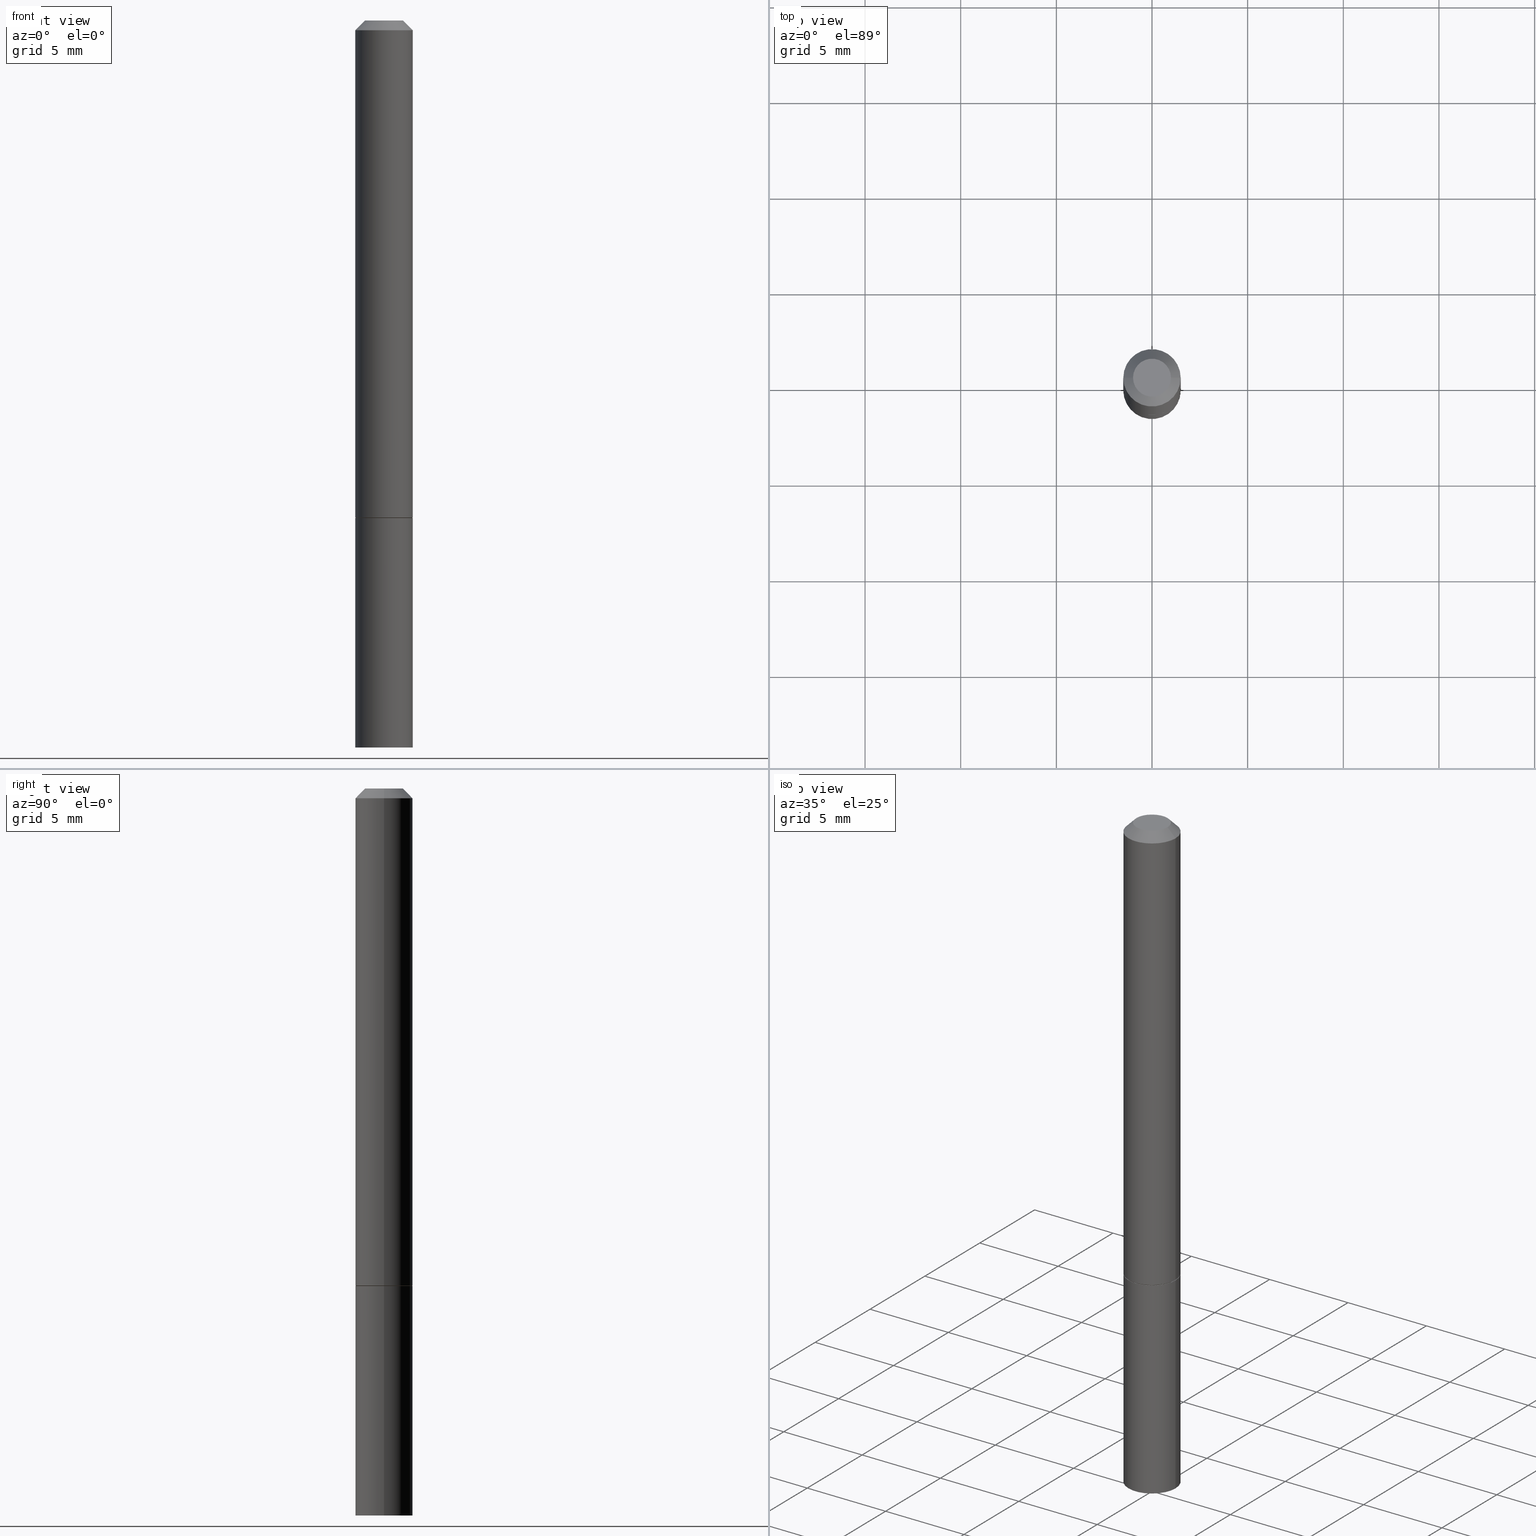
[diagram: canonical four-view strip — front | top / right | iso, engineering-drawing reading convention]
A machine part, canonical four-view strip (front | top / right | iso — engineering-drawing reading convention). The complete STEP part file that produces these views, byte-faithful:
ISO-10303-21;
HEADER;
FILE_DESCRIPTION (( 'STEP AP203' ),
    '1' );
FILE_NAME ('48760.STEP',
    '2024-02-28T14:09:40',
    ( '' ),
    ( '' ),
    'SwSTEP 2.0',
    'SolidWorks 2023',
    '' );
FILE_SCHEMA (( 'CONFIG_CONTROL_DESIGN' ));
ENDSEC;

DATA;
#1 = CARTESIAN_POINT ( 'NONE',  ( 2.503426416891723784E-29, -3.574229446573727613E-15, -1.023699999999999832 ) ) ;
#2 = CC_DESIGN_DATE_AND_TIME_ASSIGNMENT ( #135, #22, ( #174 ) ) ;
#3 = DIRECTION ( 'NONE',  ( 1.000000000000000000, -6.982962677686262766E-15, 0.000000000000000000 ) ) ;
#4 = DIRECTION ( 'NONE',  ( 2.438088387897960049E-29, -3.491481338843145188E-15, -1.000000000000000000 ) ) ;
#5 = AXIS2_PLACEMENT_3D ( 'NONE', #339, #89, #310 ) ;
#6 = LINE ( 'NONE', #258, #322 ) ;
#7 = CALENDAR_DATE ( 2024, 28, 2 ) ;
#8 = CARTESIAN_POINT ( 'NONE',  ( 3.658665880933582389E-29, -5.223605231043229660E-15, -1.496099999999999985 ) ) ;
#9 = ADVANCED_FACE ( 'NONE', ( #118 ), #196, .T. ) ;
#10 = DIRECTION ( 'NONE',  ( 0.7071067811865469066, -7.319954787623252890E-15, -0.7071067811865479058 ) ) ;
#11 = CIRCLE ( 'NONE', #194, 0.05904999999999994975 ) ;
#12 = LINE ( 'NONE', #229, #41 ) ;
#13 = CC_DESIGN_PERSON_AND_ORGANIZATION_ASSIGNMENT ( #156, #355, ( #215 ) ) ;
#14 = DIRECTION ( 'NONE',  ( 1.000000000000000000, -6.982962677686265922E-15, 4.873707401586885104E-29 ) ) ;
#15 = APPLICATION_PROTOCOL_DEFINITION ( 'international standard', 'config_control_design', 1994, #134 ) ;
#16 = AXIS2_PLACEMENT_3D ( 'NONE', #308, #221, #315 ) ;
#17 = APPROVAL_DATE_TIME ( #326, #95 ) ;
#18 = ORIENTED_EDGE ( 'NONE', *, *, #294, .F. ) ;
#19 = DIRECTION ( 'NONE',  ( -0.7071067811864992780, 7.493145998870180611E-15, 0.7071067811865957564 ) ) ;
#20 = VERTEX_POINT ( 'NONE', #84 ) ;
#21 = APPROVAL ( #335, 'UNSPECIFIED' ) ;
#22 = DATE_TIME_ROLE ( 'creation_date' ) ;
#23 = VERTEX_POINT ( 'NONE', #162 ) ;
#24 = PERSON_AND_ORGANIZATION_ROLE ( 'creator' ) ;
#25 = LOCAL_TIME ( 9, 9, 40.00000000000000000, #309 ) ;
#26 = ORIENTED_EDGE ( 'NONE', *, *, #238, .T. ) ;
#27 = ORIENTED_EDGE ( 'NONE', *, *, #73, .T. ) ;
#28 = LINE ( 'NONE', #340, #58 ) ;
#29 = DIRECTION ( 'NONE',  ( -1.000000000000000000, 6.982962677686265922E-15, -4.876176775795935793E-29 ) ) ;
#30 = CARTESIAN_POINT ( 'NONE',  ( -0.03904999999999982097, 3.075995059520783951E-16, -5.549066237130737733E-17 ) ) ;
#31 = EDGE_CURVE ( 'NONE', #75, #208, #336, .T. ) ;
#32 = CARTESIAN_POINT ( 'NONE',  ( 4.123439461174106654E-16, 0.05904999999999479415, -1.496100000000000207 ) ) ;
#33 = CARTESIAN_POINT ( 'NONE',  ( 0.000000000000000000, 0.000000000000000000, 0.000000000000000000 ) ) ;
#34 = APPROVAL_PERSON_ORGANIZATION ( #212, #95, #109 ) ;
#35 = SHAPE_DEFINITION_REPRESENTATION ( #283, #351 ) ;
#36 = CC_DESIGN_DATE_AND_TIME_ASSIGNMENT ( #304, #277, ( #206 ) ) ;
#37 = DIRECTION ( 'NONE',  ( -2.445468806185136597E-29, 3.491481338843145583E-15, 1.000000000000000000 ) ) ;
#38 = DIRECTION ( 'NONE',  ( -2.445468806185136597E-29, 3.491481338843145583E-15, 1.000000000000000000 ) ) ;
#39 = CARTESIAN_POINT ( 'NONE',  ( 2.500980948085538461E-29, -3.570737965234883817E-15, -1.022699999999999720 ) ) ;
#40 = EDGE_CURVE ( 'NONE', #101, #333, #28, .T. ) ;
#41 = VECTOR ( 'NONE', #262, 39.37007874015748143 ) ;
#42 = DIRECTION ( 'NONE',  ( -2.445468806185136597E-29, 3.491481338843145583E-15, 1.000000000000000000 ) ) ;
#43 = CARTESIAN_POINT ( 'NONE',  ( -0.05805000000000001131, -3.161759388464989128E-15, -1.023699999999999832 ) ) ;
#44 = APPROVAL_DATE_TIME ( #244, #300 ) ;
#45 = EDGE_LOOP ( 'NONE', ( #358, #360 ) ) ;
#46 = VECTOR ( 'NONE', #227, 39.37007874015748143 ) ;
#47 = ADVANCED_FACE ( 'NONE', ( #85 ), #280, .T. ) ;
#48 = PERSON_AND_ORGANIZATION_ROLE ( 'classification_officer' ) ;
#49 = ORIENTED_EDGE ( 'NONE', *, *, #150, .F. ) ;
#50 = LENGTH_MEASURE_WITH_UNIT ( LENGTH_MEASURE( 0.02539999999999999897 ), #100 );
#51 = EDGE_LOOP ( 'NONE', ( #27, #26, #334, #214 ) ) ;
#52 = COORDINATED_UNIVERSAL_TIME_OFFSET ( 5, 0, .BEHIND. ) ;
#53 = MANIFOLD_SOLID_BREP ( 'Body-Move/Copy2[1]', #165 ) ;
#54 = AXIS2_PLACEMENT_3D ( 'NONE', #33, #279, #285 ) ;
#55 = ORIENTED_EDGE ( 'NONE', *, *, #203, .T. ) ;
#56 = DIRECTION ( 'NONE',  ( -1.000000000000000000, 6.982962677686265922E-15, -4.876176775795935793E-29 ) ) ;
#57 = DIRECTION ( 'NONE',  ( -2.445468806185136877E-29, 3.491481338843145188E-15, 1.000000000000000000 ) ) ;
#58 = VECTOR ( 'NONE', #247, 39.37007874015748854 ) ;
#59 = LOCAL_TIME ( 9, 9, 40.00000000000000000, #264 ) ;
#60 = DIRECTION ( 'NONE',  ( -2.445468806185136597E-29, 3.491481338843145583E-15, 1.000000000000000000 ) ) ;
#61 = CARTESIAN_POINT ( 'NONE',  ( 0.05905000000000001914, -4.123439461173741806E-16, 2.879382386107500921E-30 ) ) ;
#62 = ORIENTED_EDGE ( 'NONE', *, *, #294, .T. ) ;
#63 = ADVANCED_FACE ( 'NONE', ( #192 ), #123, .T. ) ;
#64 = DIRECTION ( 'NONE',  ( -2.445468806185136597E-29, 3.491481338843145583E-15, 1.000000000000000000 ) ) ;
#65 = AXIS2_PLACEMENT_3D ( 'NONE', #345, #177, #292 ) ;
#66 = CARTESIAN_POINT ( 'NONE',  ( 3.658665880933582389E-29, -5.223605231043229660E-15, -1.496099999999999985 ) ) ;
#67 = LINE ( 'NONE', #151, #46 ) ;
#68 = DIRECTION ( 'NONE',  ( 2.445468806185136597E-29, -3.491481338843145583E-15, -1.000000000000000000 ) ) ;
#69 = AXIS2_PLACEMENT_3D ( 'NONE', #111, #220, #193 ) ;
#70 = CARTESIAN_POINT ( 'NONE',  ( 2.726846925636474363E-16, 0.03904999999999982097, -1.640876774674768860E-16 ) ) ;
#71 = ORIENTED_EDGE ( 'NONE', *, *, #278, .T. ) ;
#72 = APPLICATION_CONTEXT ( 'configuration controlled 3d designs of mechanical parts and assemblies' ) ;
#73 = EDGE_CURVE ( 'NONE', #299, #186, #330, .T. ) ;
#74 = PERSON_AND_ORGANIZATION ( #197, #124 ) ;
#75 = VERTEX_POINT ( 'NONE', #226 ) ;
#76 =( GEOMETRIC_REPRESENTATION_CONTEXT ( 3 ) GLOBAL_UNCERTAINTY_ASSIGNED_CONTEXT ( ( #328 ) ) GLOBAL_UNIT_ASSIGNED_CONTEXT ( ( #155, #79, #295 ) ) REPRESENTATION_CONTEXT ( 'NONE', 'WORKASPACE' ) );
#77 = DIRECTION ( 'NONE',  ( 0.000000000000000000, 0.000000000000000000, 1.000000000000000000 ) ) ;
#78 = ORIENTED_EDGE ( 'NONE', *, *, #31, .F. ) ;
#79 =( NAMED_UNIT ( * ) PLANE_ANGLE_UNIT ( ) SI_UNIT ( $, .RADIAN. ) );
#80 = CC_DESIGN_PERSON_AND_ORGANIZATION_ASSIGNMENT ( #207, #182, ( #215 ) ) ;
#81 = ORIENTED_EDGE ( 'NONE', *, *, #223, .F. ) ;
#82 = CALENDAR_DATE ( 2024, 28, 2 ) ;
#83 = EDGE_LOOP ( 'NONE', ( #188, #245, #268, #105 ) ) ;
#84 = CARTESIAN_POINT ( 'NONE',  ( -0.05905000000000001914, -3.979341853342139538E-15, -1.023699999999999832 ) ) ;
#85 = FACE_OUTER_BOUND ( 'NONE', #327, .T. ) ;
#86 = EDGE_CURVE ( 'NONE', #276, #23, #171, .T. ) ;
#87 = DIRECTION ( 'NONE',  ( 1.000000000000000000, -6.982962677686266711E-15, 4.876176775795935232E-29 ) ) ;
#88 = CIRCLE ( 'NONE', #291, 0.05905000000000001914 ) ;
#89 = DIRECTION ( 'NONE',  ( -2.445468806185136597E-29, 3.491481338843145583E-15, 1.000000000000000000 ) ) ;
#90 = DIRECTION ( 'NONE',  ( -2.445468806185136597E-29, 3.491481338843145583E-15, 1.000000000000000000 ) ) ;
#91 = CARTESIAN_POINT ( 'NONE',  ( 0.05805000000000001131, -3.979590430013415730E-15, -1.023699999999999832 ) ) ;
#92 = CARTESIAN_POINT ( 'NONE',  ( 0.05905000000000001914, -5.635949177160603791E-15, -1.496099999999999985 ) ) ;
#93 = AXIS2_PLACEMENT_3D ( 'NONE', #70, #180, #255 ) ;
#94 = DIRECTION ( 'NONE',  ( -2.445468806185136877E-29, 3.491481338843145188E-15, 1.000000000000000000 ) ) ;
#95 = APPROVAL ( #236, 'UNSPECIFIED' ) ;
#96 = FACE_OUTER_BOUND ( 'NONE', #181, .T. ) ;
#97 = DIRECTION ( 'NONE',  ( -2.445468806185136597E-29, 3.491481338843145583E-15, 1.000000000000000000 ) ) ;
#98 = CLOSED_SHELL ( 'NONE', ( #47, #107, #63, #219, #154, #254, #270, #318 ) ) ;
#99 = CIRCLE ( 'NONE', #248, 0.05905000000000001914 ) ;
#100 =( LENGTH_UNIT ( ) NAMED_UNIT ( * ) SI_UNIT ( $, .METRE. ) );
#101 = VERTEX_POINT ( 'NONE', #30 ) ;
#102 = CC_DESIGN_PERSON_AND_ORGANIZATION_ASSIGNMENT ( #361, #209, ( #257 ) ) ;
#103 = SECURITY_CLASSIFICATION_LEVEL ( 'unclassified' ) ;
#104 = CALENDAR_DATE ( 2024, 28, 2 ) ;
#105 = ORIENTED_EDGE ( 'NONE', *, *, #169, .F. ) ;
#106 = APPROVAL_PERSON_ORGANIZATION ( #286, #21, #274 ) ;
#107 = ADVANCED_FACE ( 'NONE', ( #163 ), #343, .T. ) ;
#108 = VERTEX_POINT ( 'NONE', #115 ) ;
#109 = APPROVAL_ROLE ( '' ) ;
#110 = ORIENTED_EDGE ( 'NONE', *, *, #228, .T. ) ;
#111 = CARTESIAN_POINT ( 'NONE',  ( 1.357006838635785746E-45, -1.937446121494581442E-31, -5.549066237130534971E-17 ) ) ;
#112 = AXIS2_PLACEMENT_3D ( 'NONE', #66, #205, #320 ) ;
#113 = DIRECTION ( 'NONE',  ( -2.445468806185136597E-29, 3.491481338843145583E-15, 1.000000000000000000 ) ) ;
#114 = FACE_OUTER_BOUND ( 'NONE', #185, .T. ) ;
#115 = CARTESIAN_POINT ( 'NONE',  ( 0.05904999999999981097, -4.749420335452707859E-16, -0.02000000000000007674 ) ) ;
#116 = AXIS2_PLACEMENT_3D ( 'NONE', #168, #251, #3 ) ;
#117 = LOCAL_TIME ( 9, 9, 40.00000000000000000, #52 ) ;
#118 = FACE_OUTER_BOUND ( 'NONE', #45, .T. ) ;
#119 = DIRECTION ( 'NONE',  ( 1.000000000000000000, -6.982962677686265922E-15, 0.000000000000000000 ) ) ;
#120 = CARTESIAN_POINT ( 'NONE',  ( -0.05904999999999988036, 4.195754854663383097E-16, -2.904631170795515936E-30 ) ) ;
#121 = DIRECTION ( 'NONE',  ( -2.445468806185136597E-29, 3.491481338843145583E-15, 1.000000000000000000 ) ) ;
#122 = VECTOR ( 'NONE', #57, 39.37007874015748143 ) ;
#123 = CONICAL_SURFACE ( 'NONE', #16, 0.05904999999999981097, 0.7853981633974476129 ) ;
#124 = ORGANIZATION ( 'UNSPECIFIED', 'UNSPECIFIED', '' ) ;
#125 = FACE_OUTER_BOUND ( 'NONE', #136, .T. ) ;
#126 = CARTESIAN_POINT ( 'NONE',  ( 0.000000000000000000, 0.000000000000000000, 0.000000000000000000 ) ) ;
#127 = ORIENTED_EDGE ( 'NONE', *, *, #346, .F. ) ;
#128 = ORIENTED_EDGE ( 'NONE', *, *, #189, .T. ) ;
#129 = CC_DESIGN_PERSON_AND_ORGANIZATION_ASSIGNMENT ( #74, #24, ( #174 ) ) ;
#130 = LINE ( 'NONE', #43, #298 ) ;
#131 = ORIENTED_EDGE ( 'NONE', *, *, #250, .F. ) ;
#132 = AXIS2_PLACEMENT_3D ( 'NONE', #249, #4, #29 ) ;
#133 = AXIS2_PLACEMENT_3D ( 'NONE', #287, #37, #119 ) ;
#134 = APPLICATION_CONTEXT ( 'configuration controlled 3d designs of mechanical parts and assemblies' ) ;
#135 = DATE_AND_TIME ( #302, #117 ) ;
#136 = EDGE_LOOP ( 'NONE', ( #296, #242 ) ) ;
#137 = APPROVAL_DATE_TIME ( #147, #21 ) ;
#138 = ORIENTED_EDGE ( 'NONE', *, *, #199, .F. ) ;
#139 = DIRECTION ( 'NONE',  ( 2.438088387897960049E-29, -3.491481338843145188E-15, -1.000000000000000000 ) ) ;
#140 = AXIS2_PLACEMENT_3D ( 'NONE', #126, #288, #149 ) ;
#141 = DIRECTION ( 'NONE',  ( 1.000000000000000000, -6.982962677686270655E-15, 0.000000000000000000 ) ) ;
#142 = DIRECTION ( 'NONE',  ( 1.000000000000000000, -6.982962677686270655E-15, 0.000000000000000000 ) ) ;
#143 = ADVANCED_FACE ( 'NONE', ( #144 ), #252, .F. ) ;
#144 = FACE_OUTER_BOUND ( 'NONE', #311, .T. ) ;
#145 = VECTOR ( 'NONE', #94, 39.37007874015748143 ) ;
#146 = CARTESIAN_POINT ( 'NONE',  ( 4.890937612370292426E-31, -6.982962677686317493E-17, -0.02000000000000007674 ) ) ;
#147 = DATE_AND_TIME ( #7, #25 ) ;
#148 = CYLINDRICAL_SURFACE ( 'NONE', #230, 0.05905000000000001914 ) ;
#149 = DIRECTION ( 'NONE',  ( 1.000000000000000000, -6.982962677686266711E-15, 4.876176775795935793E-29 ) ) ;
#150 = EDGE_CURVE ( 'NONE', #208, #75, #329, .T. ) ;
#151 = CARTESIAN_POINT ( 'NONE',  ( 0.05904999999999988036, -4.123439461173731945E-16, 2.879382386107493914E-30 ) ) ;
#152 = CC_DESIGN_SECURITY_CLASSIFICATION ( #206, ( #215 ) ) ;
#153 = FACE_OUTER_BOUND ( 'NONE', #241, .T. ) ;
#154 = ADVANCED_FACE ( 'NONE', ( #114 ), #222, .T. ) ;
#155 =( CONVERSION_BASED_UNIT ( 'INCH', #50 ) LENGTH_UNIT ( ) NAMED_UNIT ( #363 ) );
#156 = PERSON_AND_ORGANIZATION ( #197, #124 ) ;
#157 = ORIENTED_EDGE ( 'NONE', *, *, #341, .T. ) ;
#158 = ORIENTED_EDGE ( 'NONE', *, *, #161, .F. ) ;
#159 = CIRCLE ( 'NONE', #166, 0.03904999999999982097 ) ;
#160 = ORIENTED_EDGE ( 'NONE', *, *, #40, .T. ) ;
#161 = EDGE_CURVE ( 'NONE', #101, #301, #312, .T. ) ;
#162 = CARTESIAN_POINT ( 'NONE',  ( 0.05905000000000001914, -3.986573392691101744E-15, -1.023699999999999832 ) ) ;
#163 = FACE_OUTER_BOUND ( 'NONE', #51, .T. ) ;
#164 = MANIFOLD_SOLID_BREP ( 'Body-Move/Copy2[2]', #98 ) ;
#165 = CLOSED_SHELL ( 'NONE', ( #290, #9, #143, #263 ) ) ;
#166 = AXIS2_PLACEMENT_3D ( 'NONE', #170, #293, #14 ) ;
#167 = CONICAL_SURFACE ( 'NONE', #200, 0.05805000000000001131, 0.7853981633973801113 ) ;
#168 = CARTESIAN_POINT ( 'NONE',  ( 2.503426416891723784E-29, -3.574229446573727613E-15, -1.023699999999999832 ) ) ;
#169 = EDGE_CURVE ( 'NONE', #20, #23, #272, .T. ) ;
#170 = CARTESIAN_POINT ( 'NONE',  ( 1.357006838635785746E-45, -1.937446121494581442E-31, -5.549066237130534971E-17 ) ) ;
#171 = LINE ( 'NONE', #61, #122 ) ;
#172 = AXIS2_PLACEMENT_3D ( 'NONE', #191, #366, #246 ) ;
#173 = DIRECTION ( 'NONE',  ( 1.000000000000000000, -6.982962677686265922E-15, 0.000000000000000000 ) ) ;
#174 = PRODUCT_DEFINITION ( 'UNKNOWN', '', #215, #239 ) ;
#175 = LINE ( 'NONE', #120, #145 ) ;
#176 = DIRECTION ( 'NONE',  ( 1.000000000000000000, -6.982962677686270655E-15, 0.000000000000000000 ) ) ;
#177 = DIRECTION ( 'NONE',  ( -2.438088387897960049E-29, 3.491481338843145188E-15, 1.000000000000000000 ) ) ;
#178 = AXIS2_PLACEMENT_3D ( 'NONE', #32, #139, #56 ) ;
#179 = CC_DESIGN_APPROVAL ( #95, ( #174 ) ) ;
#180 = DIRECTION ( 'NONE',  ( 2.438088387897960049E-29, -3.491481338843145188E-15, -1.000000000000000000 ) ) ;
#181 = EDGE_LOOP ( 'NONE', ( #362, #217, #266, #269 ) ) ;
#182 = PERSON_AND_ORGANIZATION_ROLE ( 'creator' ) ;
#183 = ORIENTED_EDGE ( 'NONE', *, *, #346, .T. ) ;
#184 = PRODUCT_RELATED_PRODUCT_CATEGORY ( 'detail', '', ( #257 ) ) ;
#185 = EDGE_LOOP ( 'NONE', ( #354, #71, #157, #81 ) ) ;
#186 = VERTEX_POINT ( 'NONE', #337 ) ;
#187 = DIRECTION ( 'NONE',  ( 1.000000000000000000, -6.982962677686262766E-15, 0.000000000000000000 ) ) ;
#188 = ORIENTED_EDGE ( 'NONE', *, *, #189, .F. ) ;
#189 = EDGE_CURVE ( 'NONE', #325, #20, #224, .T. ) ;
#190 = CC_DESIGN_APPROVAL ( #300, ( #215 ) ) ;
#191 = CARTESIAN_POINT ( 'NONE',  ( 2.503426416891723784E-29, -3.574229446573727613E-15, -1.023699999999999832 ) ) ;
#192 = FACE_OUTER_BOUND ( 'NONE', #284, .T. ) ;
#193 = DIRECTION ( 'NONE',  ( 1.000000000000000000, -6.982962677686265922E-15, 4.873707401586885104E-29 ) ) ;
#194 = AXIS2_PLACEMENT_3D ( 'NONE', #39, #42, #201 ) ;
#195 = DIRECTION ( 'NONE',  ( -2.445468806185136877E-29, 3.491481338843145188E-15, 1.000000000000000000 ) ) ;
#196 = PLANE ( 'NONE',  #178 ) ;
#197 = PERSON ( 'UNSPECIFIED', 'UNSPECIFIED', 'UNSPECIFIED', ('UNSPECIFIED'), ('UNSPECIFIED'), ('UNSPECIFIED') ) ;
#198 = CARTESIAN_POINT ( 'NONE',  ( 2.503426416891723784E-29, -3.574229446573727613E-15, -1.023699999999999832 ) ) ;
#199 = EDGE_CURVE ( 'NONE', #301, #101, #159, .T. ) ;
#200 = AXIS2_PLACEMENT_3D ( 'NONE', #198, #97, #176 ) ;
#201 = DIRECTION ( 'NONE',  ( 1.000000000000000000, -6.982962677686270655E-15, 0.000000000000000000 ) ) ;
#202 = DIRECTION ( 'NONE',  ( -1.000000000000000000, 6.982962677686265922E-15, 0.000000000000000000 ) ) ;
#203 = EDGE_CURVE ( 'NONE', #108, #333, #307, .T. ) ;
#204 = DIRECTION ( 'NONE',  ( 1.000000000000000000, -6.982962677686266711E-15, 4.876176775795935793E-29 ) ) ;
#205 = DIRECTION ( 'NONE',  ( -2.445468806185136597E-29, 3.491481338843145583E-15, 1.000000000000000000 ) ) ;
#206 = SECURITY_CLASSIFICATION ( '', '', #103 ) ;
#207 = PERSON_AND_ORGANIZATION ( #197, #124 ) ;
#208 = VERTEX_POINT ( 'NONE', #91 ) ;
#209 = PERSON_AND_ORGANIZATION_ROLE ( 'design_owner' ) ;
#210 = ORIENTED_EDGE ( 'NONE', *, *, #40, .F. ) ;
#211 = EDGE_CURVE ( 'NONE', #325, #276, #243, .T. ) ;
#212 = PERSON_AND_ORGANIZATION ( #197, #124 ) ;
#213 = AXIS2_PLACEMENT_3D ( 'NONE', #1, #113, #141 ) ;
#214 = ORIENTED_EDGE ( 'NONE', *, *, #341, .F. ) ;
#215 = PRODUCT_DEFINITION_FORMATION_WITH_SPECIFIED_SOURCE ( 'ANY', '', #257, .NOT_KNOWN. ) ;
#216 = DIRECTION ( 'NONE',  ( 1.000000000000000000, 0.000000000000000000, 0.000000000000000000 ) ) ;
#217 = ORIENTED_EDGE ( 'NONE', *, *, #31, .T. ) ;
#218 = MECHANICAL_CONTEXT ( 'NONE', #134, 'mechanical' ) ;
#219 = ADVANCED_FACE ( 'NONE', ( #344 ), #347, .T. ) ;
#220 = DIRECTION ( 'NONE',  ( -2.445468806185136597E-29, 3.491481338843145583E-15, 1.000000000000000000 ) ) ;
#221 = DIRECTION ( 'NONE',  ( 2.445468806185136597E-29, -3.491481338843145583E-15, -1.000000000000000000 ) ) ;
#222 = CYLINDRICAL_SURFACE ( 'NONE', #305, 0.05904999999999988036 ) ;
#223 = EDGE_CURVE ( 'NONE', #333, #108, #265, .T. ) ;
#224 = LINE ( 'NONE', #342, #321 ) ;
#225 = CC_DESIGN_APPROVAL ( #21, ( #206 ) ) ;
#226 = CARTESIAN_POINT ( 'NONE',  ( -0.05805000000000001131, -3.156460934116767120E-15, -1.023699999999999832 ) ) ;
#227 = DIRECTION ( 'NONE',  ( -2.445468806185136877E-29, 3.491481338843145188E-15, 1.000000000000000000 ) ) ;
#228 = EDGE_CURVE ( 'NONE', #276, #325, #99, .T. ) ;
#229 = CARTESIAN_POINT ( 'NONE',  ( 0.05805000000000001131, -3.979590430013415730E-15, -1.023699999999999832 ) ) ;
#230 = AXIS2_PLACEMENT_3D ( 'NONE', #323, #121, #204 ) ;
#231 = CARTESIAN_POINT ( 'NONE',  ( 0.05904999999999994975, -3.983081911352257948E-15, -1.022699999999999720 ) ) ;
#232 = CARTESIAN_POINT ( 'NONE',  ( 4.890937612370292426E-31, -6.982962677686317493E-17, -0.02000000000000007674 ) ) ;
#233 = FACE_OUTER_BOUND ( 'NONE', #83, .T. ) ;
#234 = APPROVAL_STATUS ( 'not_yet_approved' ) ;
#235 = APPROVAL_PERSON_ORGANIZATION ( #324, #300, #353 ) ;
#236 = APPROVAL_STATUS ( 'not_yet_approved' ) ;
#237 = ORIENTED_EDGE ( 'NONE', *, *, #169, .T. ) ;
#238 = EDGE_CURVE ( 'NONE', #186, #333, #175, .T. ) ;
#239 = DESIGN_CONTEXT ( 'detailed design', #72, 'design' ) ;
#240 = CARTESIAN_POINT ( 'NONE',  ( 0.000000000000000000, 0.000000000000000000, 0.000000000000000000 ) ) ;
#241 = EDGE_LOOP ( 'NONE', ( #110, #128, #127, #306 ) ) ;
#242 = ORIENTED_EDGE ( 'NONE', *, *, #199, .T. ) ;
#243 = CIRCLE ( 'NONE', #112, 0.05905000000000001914 ) ;
#244 = DATE_AND_TIME ( #359, #59 ) ;
#245 = ORIENTED_EDGE ( 'NONE', *, *, #211, .T. ) ;
#246 = DIRECTION ( 'NONE',  ( 1.000000000000000000, -6.982962677686270655E-15, 0.000000000000000000 ) ) ;
#247 = DIRECTION ( 'NONE',  ( -0.7071067811865469066, 2.468850131082251144E-15, -0.7071067811865479058 ) ) ;
#248 = AXIS2_PLACEMENT_3D ( 'NONE', #8, #38, #349 ) ;
#249 = CARTESIAN_POINT ( 'NONE',  ( 4.123439461173991776E-16, 0.05904999999999643867, -1.023700000000000054 ) ) ;
#250 = EDGE_CURVE ( 'NONE', #208, #299, #12, .T. ) ;
#251 = DIRECTION ( 'NONE',  ( -2.445468806185136597E-29, 3.491481338843145583E-15, 1.000000000000000000 ) ) ;
#252 = PLANE ( 'NONE',  #132 ) ;
#253 = AXIS2_PLACEMENT_3D ( 'NONE', #146, #68, #202 ) ;
#254 = ADVANCED_FACE ( 'NONE', ( #96 ), #167, .T. ) ;
#255 = DIRECTION ( 'NONE',  ( -1.000000000000000000, 6.982962677686265922E-15, -4.876176775795935793E-29 ) ) ;
#256 = FACE_OUTER_BOUND ( 'NONE', #273, .T. ) ;
#257 = PRODUCT ( '48760', '48760', '', ( #218 ) ) ;
#258 = CARTESIAN_POINT ( 'NONE',  ( 0.05904999999999981097, -4.749420335452707859E-16, -0.02000000000000007674 ) ) ;
#259 = AXIS2_PLACEMENT_3D ( 'NONE', #365, #90, #142 ) ;
#260 = LOCAL_TIME ( 9, 9, 40.00000000000000000, #267 ) ;
#261 = CARTESIAN_POINT ( 'NONE',  ( 2.503426416891723784E-29, -3.574229446573727613E-15, -1.023699999999999832 ) ) ;
#262 = DIRECTION ( 'NONE',  ( 0.7071067811864992780, -2.468850131081751401E-15, 0.7071067811865957564 ) ) ;
#263 = ADVANCED_FACE ( 'NONE', ( #233 ), #148, .T. ) ;
#264 = COORDINATED_UNIVERSAL_TIME_OFFSET ( 5, 0, .BEHIND. ) ;
#265 = CIRCLE ( 'NONE', #133, 0.05904999999999981097 ) ;
#266 = ORIENTED_EDGE ( 'NONE', *, *, #250, .T. ) ;
#267 = COORDINATED_UNIVERSAL_TIME_OFFSET ( 5, 0, .BEHIND. ) ;
#268 = ORIENTED_EDGE ( 'NONE', *, *, #86, .T. ) ;
#269 = ORIENTED_EDGE ( 'NONE', *, *, #278, .F. ) ;
#270 = ADVANCED_FACE ( 'NONE', ( #256 ), #316, .F. ) ;
#271 = DIRECTION ( 'NONE',  ( -2.445468806185136597E-29, 3.491481338843145583E-15, 1.000000000000000000 ) ) ;
#272 = CIRCLE ( 'NONE', #116, 0.05905000000000001914 ) ;
#273 = EDGE_LOOP ( 'NONE', ( #49, #78 ) ) ;
#274 = APPROVAL_ROLE ( '' ) ;
#275 = EDGE_LOOP ( 'NONE', ( #18, #158, #160, #282 ) ) ;
#276 = VERTEX_POINT ( 'NONE', #92 ) ;
#277 = DATE_TIME_ROLE ( 'classification_date' ) ;
#278 = EDGE_CURVE ( 'NONE', #186, #299, #11, .T. ) ;
#279 = DIRECTION ( 'NONE',  ( -2.445468806185136597E-29, 3.491481338843145583E-15, 1.000000000000000000 ) ) ;
#280 = CONICAL_SURFACE ( 'NONE', #172, 0.05805000000000001131, 0.7853981633973801113 ) ;
#281 = AXIS2_PLACEMENT_3D ( 'NONE', #240, #77, #216 ) ;
#282 = ORIENTED_EDGE ( 'NONE', *, *, #223, .T. ) ;
#283 = PRODUCT_DEFINITION_SHAPE ( 'NONE', 'NONE',  #174 ) ;
#284 = EDGE_LOOP ( 'NONE', ( #138, #62, #55, #210 ) ) ;
#285 = DIRECTION ( 'NONE',  ( 1.000000000000000000, -6.982962677686266711E-15, 4.876176775795935232E-29 ) ) ;
#286 = PERSON_AND_ORGANIZATION ( #197, #124 ) ;
#287 = CARTESIAN_POINT ( 'NONE',  ( 4.890937612370292426E-31, -6.982962677686317493E-17, -0.02000000000000007674 ) ) ;
#288 = DIRECTION ( 'NONE',  ( -2.445468806185136597E-29, 3.491481338843145583E-15, 1.000000000000000000 ) ) ;
#289 = CARTESIAN_POINT ( 'NONE',  ( 0.03904999999999982097, -3.714222401791240519E-16, -5.549066237130309406E-17 ) ) ;
#290 = ADVANCED_FACE ( 'NONE', ( #153 ), #317, .T. ) ;
#291 = AXIS2_PLACEMENT_3D ( 'NONE', #261, #271, #187 ) ;
#292 = DIRECTION ( 'NONE',  ( 1.000000000000000000, -6.982962677686265922E-15, 4.876176775795935793E-29 ) ) ;
#293 = DIRECTION ( 'NONE',  ( -2.445468806185136597E-29, 3.491481338843145583E-15, 1.000000000000000000 ) ) ;
#294 = EDGE_CURVE ( 'NONE', #301, #108, #6, .T. ) ;
#295 =( NAMED_UNIT ( * ) SI_UNIT ( $, .STERADIAN. ) SOLID_ANGLE_UNIT ( ) );
#296 = ORIENTED_EDGE ( 'NONE', *, *, #161, .T. ) ;
#297 = PERSON_AND_ORGANIZATION ( #197, #124 ) ;
#298 = VECTOR ( 'NONE', #19, 39.37007874015748143 ) ;
#299 = VERTEX_POINT ( 'NONE', #231 ) ;
#300 = APPROVAL ( #234, 'UNSPECIFIED' ) ;
#301 = VERTEX_POINT ( 'NONE', #289 ) ;
#302 = CALENDAR_DATE ( 2024, 28, 2 ) ;
#303 = ORIENTED_EDGE ( 'NONE', *, *, #150, .T. ) ;
#304 = DATE_AND_TIME ( #104, #260 ) ;
#305 = AXIS2_PLACEMENT_3D ( 'NONE', #314, #60, #87 ) ;
#306 = ORIENTED_EDGE ( 'NONE', *, *, #86, .F. ) ;
#307 = CIRCLE ( 'NONE', #352, 0.05904999999999981097 ) ;
#308 = CARTESIAN_POINT ( 'NONE',  ( 4.890937612370292426E-31, -6.982962677686317493E-17, -0.02000000000000007674 ) ) ;
#309 = COORDINATED_UNIVERSAL_TIME_OFFSET ( 5, 0, .BEHIND. ) ;
#310 = DIRECTION ( 'NONE',  ( 1.000000000000000000, -6.982962677686270655E-15, 0.000000000000000000 ) ) ;
#311 = EDGE_LOOP ( 'NONE', ( #183, #237 ) ) ;
#312 = CIRCLE ( 'NONE', #69, 0.03904999999999982097 ) ;
#313 = LOCAL_TIME ( 9, 9, 40.00000000000000000, #357 ) ;
#314 = CARTESIAN_POINT ( 'NONE',  ( 0.000000000000000000, 0.000000000000000000, 0.000000000000000000 ) ) ;
#315 = DIRECTION ( 'NONE',  ( -1.000000000000000000, 6.982962677686265922E-15, 0.000000000000000000 ) ) ;
#316 = PLANE ( 'NONE',  #65 ) ;
#317 = CYLINDRICAL_SURFACE ( 'NONE', #140, 0.05905000000000001914 ) ;
#318 = ADVANCED_FACE ( 'NONE', ( #125 ), #350, .F. ) ;
#319 = CARTESIAN_POINT ( 'NONE',  ( -0.05904999999999981097, 3.425143193405095019E-16, -0.02000000000000007674 ) ) ;
#320 = DIRECTION ( 'NONE',  ( 1.000000000000000000, -6.982962677686270655E-15, 0.000000000000000000 ) ) ;
#321 = VECTOR ( 'NONE', #195, 39.37007874015748143 ) ;
#322 = VECTOR ( 'NONE', #10, 39.37007874015748854 ) ;
#323 = CARTESIAN_POINT ( 'NONE',  ( 0.000000000000000000, 0.000000000000000000, 0.000000000000000000 ) ) ;
#324 = PERSON_AND_ORGANIZATION ( #197, #124 ) ;
#325 = VERTEX_POINT ( 'NONE', #348 ) ;
#326 = DATE_AND_TIME ( #82, #313 ) ;
#327 = EDGE_LOOP ( 'NONE', ( #303, #356, #331, #131 ) ) ;
#328 = UNCERTAINTY_MEASURE_WITH_UNIT (LENGTH_MEASURE( 1.000000000000000082E-05 ), #155, 'distance_accuracy_value', 'NONE');
#329 = CIRCLE ( 'NONE', #259, 0.05805000000000001131 ) ;
#330 = CIRCLE ( 'NONE', #5, 0.05904999999999994975 ) ;
#331 = ORIENTED_EDGE ( 'NONE', *, *, #73, .F. ) ;
#332 = APPLICATION_PROTOCOL_DEFINITION ( 'international standard', 'config_control_design', 1994, #72 ) ;
#333 = VERTEX_POINT ( 'NONE', #319 ) ;
#334 = ORIENTED_EDGE ( 'NONE', *, *, #203, .F. ) ;
#335 = APPROVAL_STATUS ( 'not_yet_approved' ) ;
#336 = CIRCLE ( 'NONE', #213, 0.05805000000000001131 ) ;
#337 = CARTESIAN_POINT ( 'NONE',  ( -0.05904999999999994975, -1.400708310539532881E-15, -1.022699999999999720 ) ) ;
#338 = CC_DESIGN_PERSON_AND_ORGANIZATION_ASSIGNMENT ( #297, #48, ( #206 ) ) ;
#339 = CARTESIAN_POINT ( 'NONE',  ( 2.500980948085538461E-29, -3.570737965234883817E-15, -1.022699999999999720 ) ) ;
#340 = CARTESIAN_POINT ( 'NONE',  ( -0.05904999999999981097, 3.425143193405095019E-16, -0.02000000000000007674 ) ) ;
#341 = EDGE_CURVE ( 'NONE', #299, #108, #67, .T. ) ;
#342 = CARTESIAN_POINT ( 'NONE',  ( -0.05905000000000001914, 4.195754854663392958E-16, -2.904631170795522943E-30 ) ) ;
#343 = CYLINDRICAL_SURFACE ( 'NONE', #54, 0.05904999999999988036 ) ;
#344 = FACE_OUTER_BOUND ( 'NONE', #275, .T. ) ;
#345 = CARTESIAN_POINT ( 'NONE',  ( 2.503426416891723784E-29, -3.574229446573727613E-15, -1.023699999999999832 ) ) ;
#346 = EDGE_CURVE ( 'NONE', #23, #20, #88, .T. ) ;
#347 = CONICAL_SURFACE ( 'NONE', #253, 0.05904999999999981097, 0.7853981633974476129 ) ;
#348 = CARTESIAN_POINT ( 'NONE',  ( -0.05905000000000001914, -3.979341853342139538E-15, -1.496099999999999985 ) ) ;
#349 = DIRECTION ( 'NONE',  ( 1.000000000000000000, -6.982962677686270655E-15, 0.000000000000000000 ) ) ;
#350 = PLANE ( 'NONE',  #93 ) ;
#351 = ADVANCED_BREP_SHAPE_REPRESENTATION ( '48760', ( #53, #164, #281 ), #76 ) ;
#352 = AXIS2_PLACEMENT_3D ( 'NONE', #232, #64, #173 ) ;
#353 = APPROVAL_ROLE ( '' ) ;
#354 = ORIENTED_EDGE ( 'NONE', *, *, #238, .F. ) ;
#355 = PERSON_AND_ORGANIZATION_ROLE ( 'design_supplier' ) ;
#356 = ORIENTED_EDGE ( 'NONE', *, *, #364, .T. ) ;
#357 = COORDINATED_UNIVERSAL_TIME_OFFSET ( 5, 0, .BEHIND. ) ;
#358 = ORIENTED_EDGE ( 'NONE', *, *, #228, .F. ) ;
#359 = CALENDAR_DATE ( 2024, 28, 2 ) ;
#360 = ORIENTED_EDGE ( 'NONE', *, *, #211, .F. ) ;
#361 = PERSON_AND_ORGANIZATION ( #197, #124 ) ;
#362 = ORIENTED_EDGE ( 'NONE', *, *, #364, .F. ) ;
#363 = DIMENSIONAL_EXPONENTS ( 1.000000000000000000, 0.000000000000000000, 0.000000000000000000, 0.000000000000000000, 0.000000000000000000, 0.000000000000000000, 0.000000000000000000 ) ;
#364 = EDGE_CURVE ( 'NONE', #75, #186, #130, .T. ) ;
#365 = CARTESIAN_POINT ( 'NONE',  ( 2.503426416891723784E-29, -3.574229446573727613E-15, -1.023699999999999832 ) ) ;
#366 = DIRECTION ( 'NONE',  ( -2.445468806185136597E-29, 3.491481338843145583E-15, 1.000000000000000000 ) ) ;
ENDSEC;
END-ISO-10303-21;
